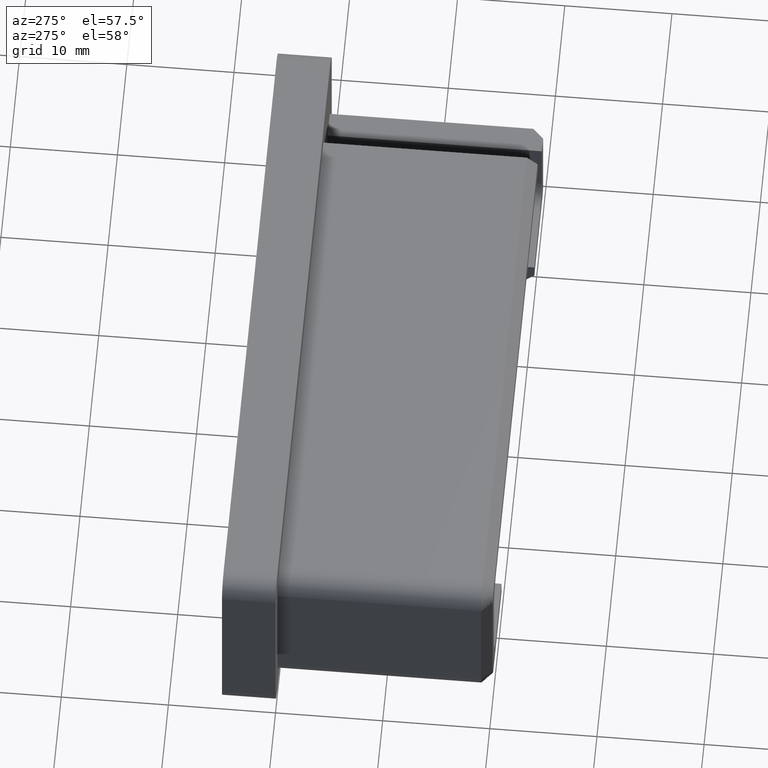
[diagram: clean part render]
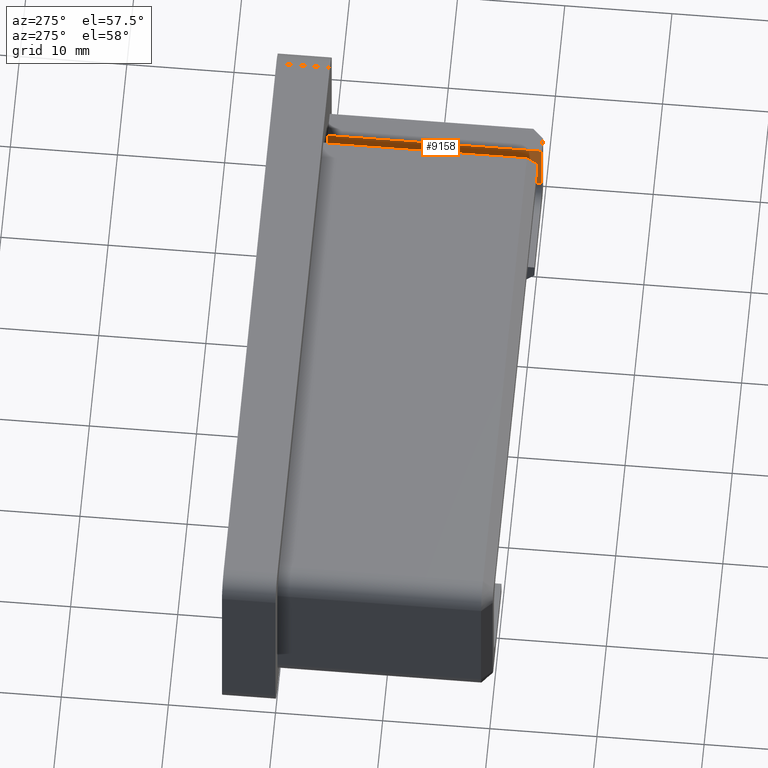
[diagram: same view with one face highlighted and labeled with its STEP entity id]
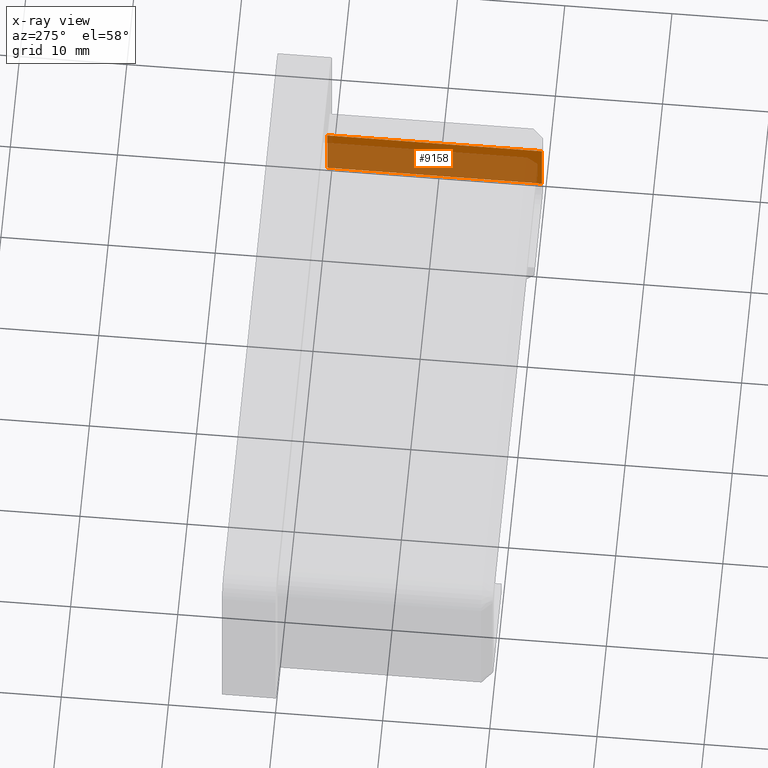
[diagram: x-ray of the same camera — body ghosted, the highlighted face saturated]
A machine part, auxiliary view. The second image highlights one B-rep face of the part: STEP entity #9158.
The next image is the same camera in x-ray: the body ghosted, the highlighted face saturated — about 75% of this face is hidden behind the body in this view.
In plain terms, the highlighted planar face has unit normal (1, 0, 0).
Its self-contained STEP definition (entity closure, byte-faithful):
#323 = EDGE_CURVE ( 'NONE', #13998, #5588, #1534, .T. ) ;
#438 = CARTESIAN_POINT ( 'NONE',  ( 25.49999999999999645, -20.00000000000000000, -3.499999999999999556 ) ) ;
#737 = CARTESIAN_POINT ( 'NONE',  ( 25.49999999999999289, 0.000000000000000000, 2.099999999999999645 ) ) ;
#755 = ORIENTED_EDGE ( 'NONE', *, *, #3681, .F. ) ;
#854 = CARTESIAN_POINT ( 'NONE',  ( 25.49999999999999289, -20.00000000000000000, 2.099999999999999645 ) ) ;
#1043 = CARTESIAN_POINT ( 'NONE',  ( 25.49999999999999289, -20.00000000000000000, 2.099999999999999645 ) ) ;
#1534 = LINE ( 'NONE', #5974, #10679 ) ;
#2279 = DIRECTION ( 'NONE',  ( 4.565061778886334044E-16, 0.000000000000000000, -1.000000000000000000 ) ) ;
#2353 = FACE_OUTER_BOUND ( 'NONE', #3175, .T. ) ;
#3175 = EDGE_LOOP ( 'NONE', ( #10881, #4500, #755, #12963 ) ) ;
#3325 = VECTOR ( 'NONE', #3578, 1000.000000000000000 ) ;
#3578 = DIRECTION ( 'NONE',  ( 4.565061778886334044E-16, 0.000000000000000000, -1.000000000000000000 ) ) ;
#3610 = DIRECTION ( 'NONE',  ( -0.000000000000000000, -1.000000000000000000, 0.000000000000000000 ) ) ;
#3652 = VECTOR ( 'NONE', #11686, 1000.000000000000000 ) ;
#3681 = EDGE_CURVE ( 'NONE', #15484, #5588, #4806, .T. ) ;
#3829 = EDGE_CURVE ( 'NONE', #12918, #13998, #6135, .T. ) ;
#4484 = CARTESIAN_POINT ( 'NONE',  ( 25.49999999999999645, 0.000000000000000000, -3.499999999999999556 ) ) ;
#4500 = ORIENTED_EDGE ( 'NONE', *, *, #323, .T. ) ;
#4806 = LINE ( 'NONE', #1043, #3325 ) ;
#5487 = DIRECTION ( 'NONE',  ( 4.565061778886334044E-16, 0.000000000000000000, -1.000000000000000000 ) ) ;
#5542 = PLANE ( 'NONE',  #9917 ) ;
#5588 = VERTEX_POINT ( 'NONE', #438 ) ;
#5974 = CARTESIAN_POINT ( 'NONE',  ( 25.49999999999999645, -20.00000000000000000, -3.499999999999999556 ) ) ;
#6135 = LINE ( 'NONE', #8388, #12086 ) ;
#7726 = CARTESIAN_POINT ( 'NONE',  ( 25.49999999999999289, -20.00000000000000000, 2.099999999999999645 ) ) ;
#8291 = EDGE_CURVE ( 'NONE', #15484, #12918, #14837, .T. ) ;
#8388 = CARTESIAN_POINT ( 'NONE',  ( 25.49999999999999289, 0.000000000000000000, 2.099999999999999645 ) ) ;
#9158 = ADVANCED_FACE ( 'NONE', ( #2353 ), #5542, .F. ) ;
#9917 = AXIS2_PLACEMENT_3D ( 'NONE', #854, #13798, #5487 ) ;
#10679 = VECTOR ( 'NONE', #3610, 1000.000000000000000 ) ;
#10881 = ORIENTED_EDGE ( 'NONE', *, *, #3829, .T. ) ;
#11686 = DIRECTION ( 'NONE',  ( -0.000000000000000000, 1.000000000000000000, -0.000000000000000000 ) ) ;
#12058 = CARTESIAN_POINT ( 'NONE',  ( 25.49999999999999289, -20.00000000000000000, 2.099999999999999645 ) ) ;
#12086 = VECTOR ( 'NONE', #2279, 1000.000000000000000 ) ;
#12918 = VERTEX_POINT ( 'NONE', #737 ) ;
#12963 = ORIENTED_EDGE ( 'NONE', *, *, #8291, .T. ) ;
#13798 = DIRECTION ( 'NONE',  ( 1.000000000000000000, 0.000000000000000000, 4.565061778886334044E-16 ) ) ;
#13998 = VERTEX_POINT ( 'NONE', #4484 ) ;
#14837 = LINE ( 'NONE', #7726, #3652 ) ;
#15484 = VERTEX_POINT ( 'NONE', #12058 ) ;